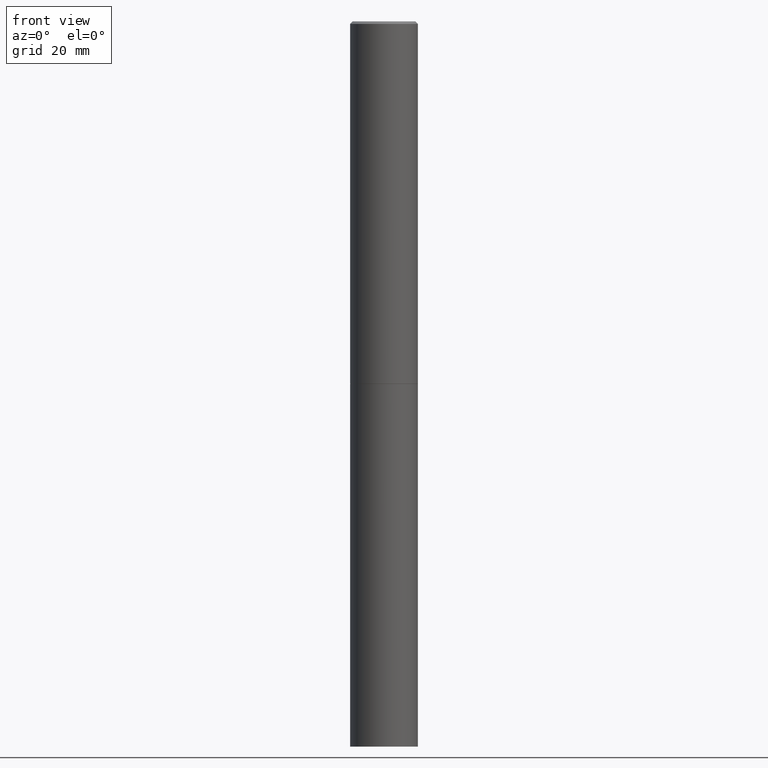
[diagram: clean part render]
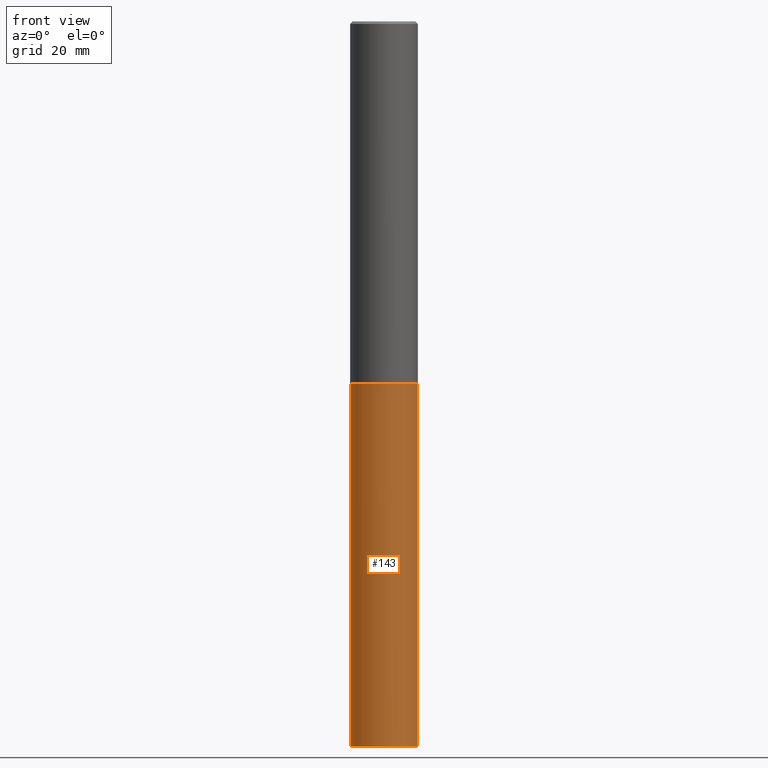
[diagram: same view with one face highlighted and labeled with its STEP entity id]
A machine part, front view. The second image highlights one B-rep face of the part: STEP entity #143.
In plain terms, the highlighted cylindrical surface (edge-blend (fillet) strip) has radius 7.0002 mm, axis along (-0, 0, 1).
Its self-contained STEP definition (entity closure, byte-faithful):
#2 = DIRECTION ( 'NONE',  ( -2.445468806185136597E-29, 3.491481338843145583E-15, 1.000000000000000000 ) ) ;
#5 = VECTOR ( 'NONE', #135, 39.37007874015748143 ) ;
#11 = CARTESIAN_POINT ( 'NONE',  ( 0.2756000000000000116, -1.924504513970335348E-15, 1.343874319409359987E-29 ) ) ;
#32 = EDGE_LOOP ( 'NONE', ( #121, #117, #38, #189 ) ) ;
#38 = ORIENTED_EDGE ( 'NONE', *, *, #344, .T. ) ;
#54 = AXIS2_PLACEMENT_3D ( 'NONE', #124, #229, #88 ) ;
#57 = EDGE_CURVE ( 'NONE', #74, #192, #185, .T. ) ;
#62 = CARTESIAN_POINT ( 'NONE',  ( 0.000000000000000000, 0.000000000000000000, 0.000000000000000000 ) ) ;
#74 = VERTEX_POINT ( 'NONE', #240 ) ;
#78 = CARTESIAN_POINT ( 'NONE',  ( -0.2756000000000000116, -1.350586421811533611E-14, -2.952700000000000102 ) ) ;
#81 = EDGE_CURVE ( 'NONE', #74, #170, #212, .T. ) ;
#88 = DIRECTION ( 'NONE',  ( 1.000000000000000000, -6.982962677686265922E-15, 0.000000000000000000 ) ) ;
#91 = FACE_OUTER_BOUND ( 'NONE', #32, .T. ) ;
#92 = DIRECTION ( 'NONE',  ( 1.000000000000000000, -6.982962677686267499E-15, 4.876176775795935793E-29 ) ) ;
#117 = ORIENTED_EDGE ( 'NONE', *, *, #57, .T. ) ;
#121 = ORIENTED_EDGE ( 'NONE', *, *, #81, .F. ) ;
#124 = CARTESIAN_POINT ( 'NONE',  ( 1.444171603492632270E-28, -2.061894304653819197E-14, -5.905499999999999972 ) ) ;
#129 = CIRCLE ( 'NONE', #148, 0.2756000000000000116 ) ;
#135 = DIRECTION ( 'NONE',  ( -2.445468806185136877E-29, 3.491481338843145188E-15, 1.000000000000000000 ) ) ;
#143 = ADVANCED_FACE ( 'NONE', ( #91 ), #337, .T. ) ;
#148 = AXIS2_PLACEMENT_3D ( 'NONE', #193, #352, #309 ) ;
#153 = AXIS2_PLACEMENT_3D ( 'NONE', #62, #2, #92 ) ;
#161 = LINE ( 'NONE', #11, #5 ) ;
#165 = VERTEX_POINT ( 'NONE', #172 ) ;
#170 = VERTEX_POINT ( 'NONE', #78 ) ;
#172 = CARTESIAN_POINT ( 'NONE',  ( 0.2756000000000000116, -1.223380146317248997E-14, -2.952700000000000102 ) ) ;
#185 = CIRCLE ( 'NONE', #54, 0.2756000000000000116 ) ;
#187 = DIRECTION ( 'NONE',  ( -2.445468806185136877E-29, 3.491481338843145188E-15, 1.000000000000000000 ) ) ;
#189 = ORIENTED_EDGE ( 'NONE', *, *, #199, .F. ) ;
#192 = VERTEX_POINT ( 'NONE', #221 ) ;
#193 = CARTESIAN_POINT ( 'NONE',  ( 7.220735744022852519E-29, -1.030929694920215502E-14, -2.952700000000000102 ) ) ;
#199 = EDGE_CURVE ( 'NONE', #170, #165, #129, .T. ) ;
#212 = LINE ( 'NONE', #322, #243 ) ;
#221 = CARTESIAN_POINT ( 'NONE',  ( 0.2756000000000000116, -2.254344756050852692E-14, -5.905499999999999972 ) ) ;
#229 = DIRECTION ( 'NONE',  ( -2.445468806185136597E-29, 3.491481338843145583E-15, 1.000000000000000000 ) ) ;
#240 = CARTESIAN_POINT ( 'NONE',  ( -0.2756000000000000116, -1.350586421811533611E-14, -5.905499999999999972 ) ) ;
#243 = VECTOR ( 'NONE', #187, 39.37007874015748143 ) ;
#309 = DIRECTION ( 'NONE',  ( 1.000000000000000000, -6.982962677686265922E-15, 0.000000000000000000 ) ) ;
#322 = CARTESIAN_POINT ( 'NONE',  ( -0.2756000000000000116, 1.958255779754836195E-15, -1.355658510874252007E-29 ) ) ;
#337 = CYLINDRICAL_SURFACE ( 'NONE', #153, 0.2756000000000000116 ) ;
#344 = EDGE_CURVE ( 'NONE', #192, #165, #161, .T. ) ;
#352 = DIRECTION ( 'NONE',  ( -2.445468806185136597E-29, 3.491481338843145583E-15, 1.000000000000000000 ) ) ;